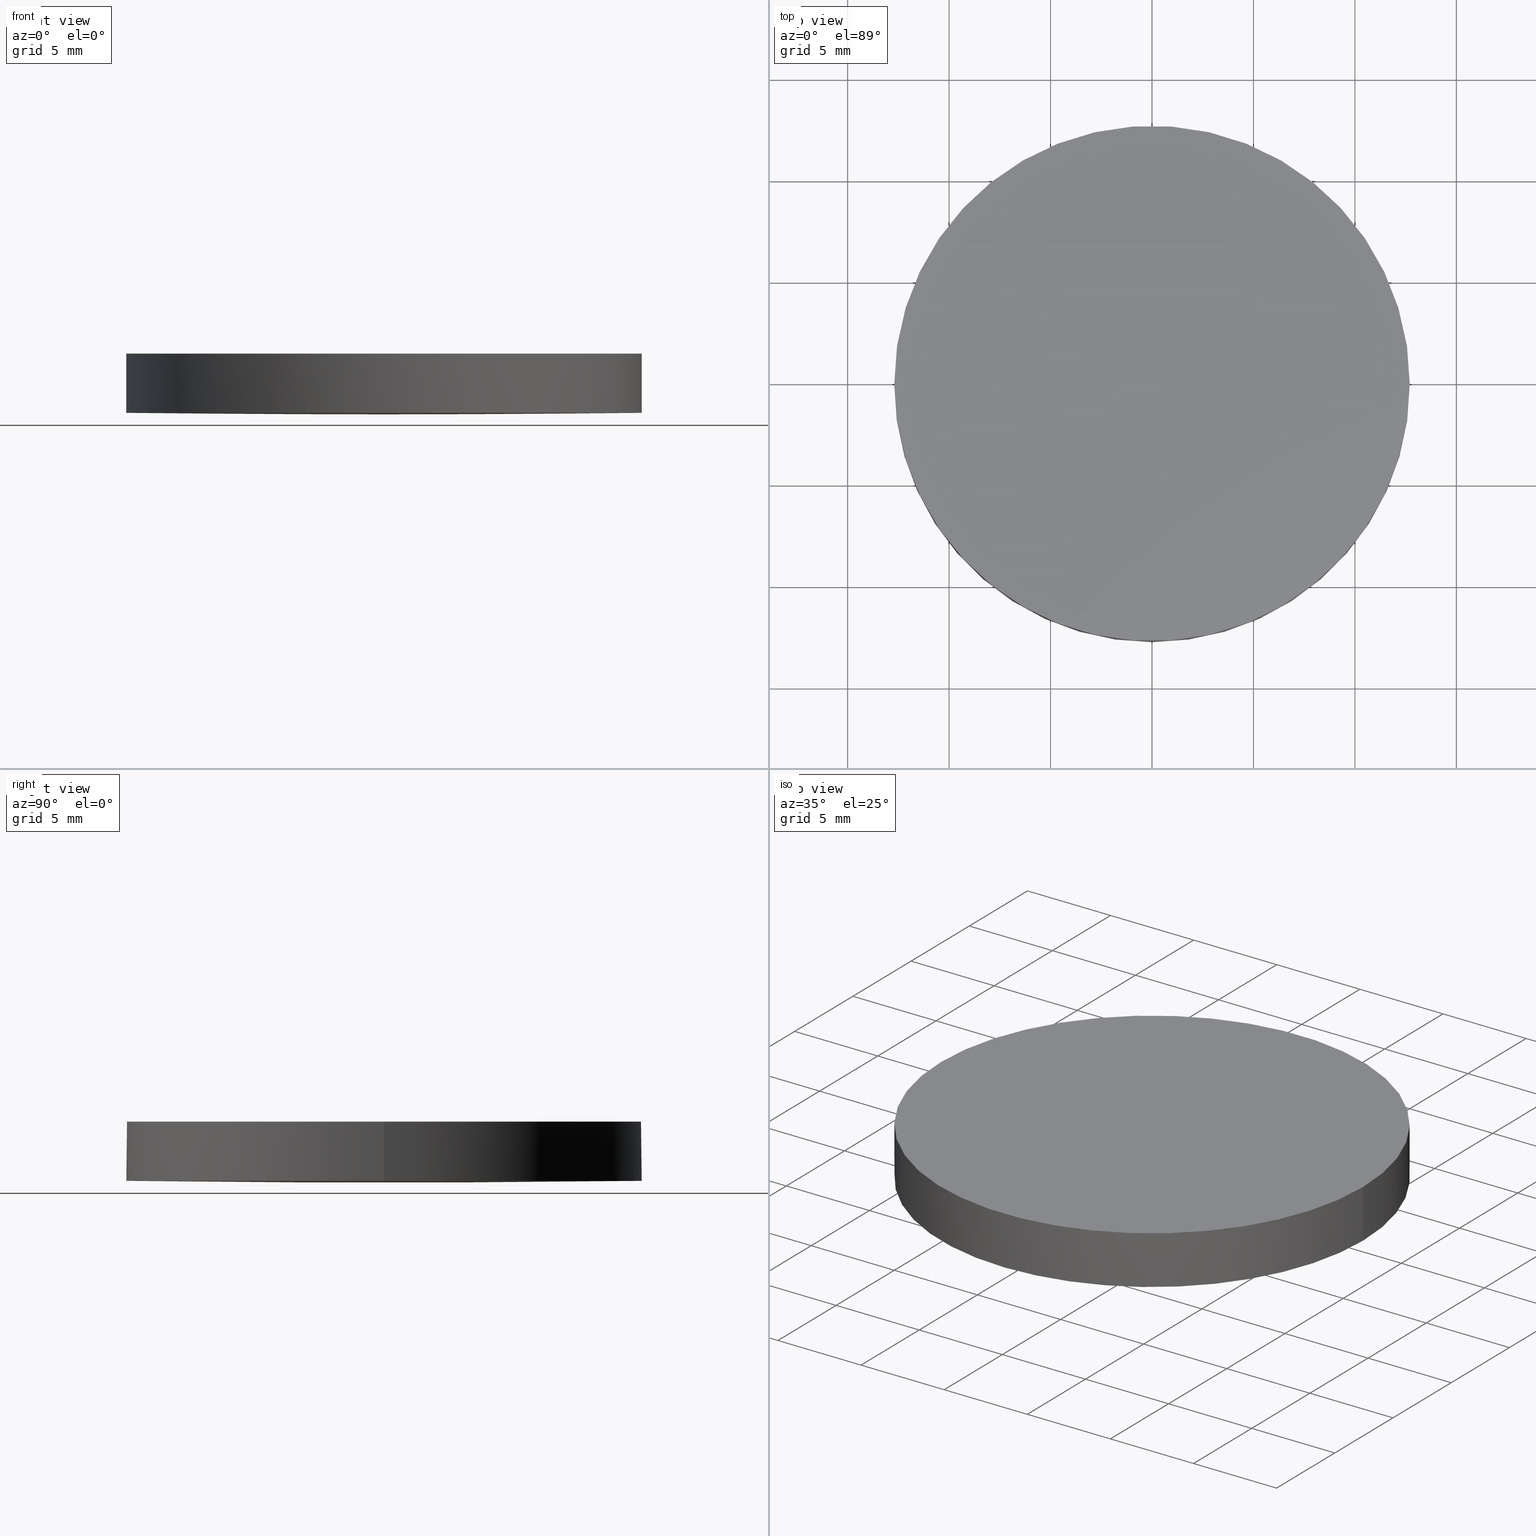
[diagram: canonical four-view strip — front | top / right | iso, engineering-drawing reading convention]
A machine part, canonical four-view strip (front | top / right | iso — engineering-drawing reading convention). The complete STEP part file that produces these views, byte-faithful:
ISO-10303-21;
HEADER;
FILE_DESCRIPTION (( 'STEP AP203' ),
    '1' );
FILE_NAME ('110-0270E BK7 pl-cx 25.4 F1900.STEP',
    '2018-12-21T06:44:55',
    ( '' ),
    ( '' ),
    'SwSTEP 2.0',
    'SolidWorks 2017',
    '' );
FILE_SCHEMA (( 'CONFIG_CONTROL_DESIGN' ));
ENDSEC;

DATA;
#1 = CARTESIAN_POINT ( 'NONE',  ( 4.996003610813200500E-016, 2.442490654175340100E-015, 0.08182665158325720700 ) ) ;
#2 = EDGE_CURVE ( 'NONE', #45, #191, #126, .T. ) ;
#3 = ORIENTED_EDGE ( 'NONE', *, *, #127, .T. ) ;
#4 = PERSON_AND_ORGANIZATION_ROLE ( 'design_supplier' ) ;
#5 = ADVANCED_FACE ( 'NONE', ( #195 ), #73, .T. ) ;
#6 = ORIENTED_EDGE ( 'NONE', *, *, #16, .T. ) ;
#7 = CIRCLE ( 'NONE', #74, 12.69999999999999900 ) ;
#8 = CARTESIAN_POINT ( 'NONE',  ( -12.69999999999999900, 3.997792089092478900E-015, 0.08182665158325720700 ) ) ;
#9 = DIRECTION ( 'NONE',  ( 1.000000000000000000, 0.0000000000000000000, 0.0000000000000000000 ) ) ;
#10 = PERSON_AND_ORGANIZATION ( #152, #44 ) ;
#11 = EDGE_CURVE ( 'NONE', #45, #36, #7, .T. ) ;
#12 = CARTESIAN_POINT ( 'NONE',  ( -8.517913990956008900, -4.284373327980984100, -0.0003306621768354032100 ) ) ;
#13 = APPROVAL ( #162, 'UNSPECIFIED' ) ;
#14 = DIRECTION ( 'NONE',  ( 0.0000000000000000000, 0.0000000000000000000, 1.000000000000000000 ) ) ;
#15 = CALENDAR_DATE ( 2018, 21, 12 ) ;
#16 = EDGE_CURVE ( 'NONE', #129, #36, #202, .T. ) ;
#17 = DIRECTION ( 'NONE',  ( -0.0000000000000000000, -0.0000000000000000000, -1.000000000000000000 ) ) ;
#18 = ADVANCED_BREP_SHAPE_REPRESENTATION ( '110-0270E BK7 pl-cx 25.4 F1900', ( #55, #179 ), #67 ) ;
#19 = CALENDAR_DATE ( 2018, 21, 12 ) ;
#20 = FACE_OUTER_BOUND ( 'NONE', #82, .T. ) ;
#21 = AXIS2_PLACEMENT_3D ( 'NONE', #199, #66, #145 ) ;
#22 = PERSON_AND_ORGANIZATION ( #152, #44 ) ;
#23 = DATE_AND_TIME ( #15, #143 ) ;
#24 = DIRECTION ( 'NONE',  ( 1.000000000000000000, 0.0000000000000000000, 0.0000000000000000000 ) ) ;
#25 = UNCERTAINTY_MEASURE_WITH_UNIT (LENGTH_MEASURE( 1.000000000000000100E-005 ), #217, 'distance_accuracy_value', 'NONE');
#26 = AXIS2_PLACEMENT_3D ( 'NONE', #214, #99, #190 ) ;
#27 = PERSON_AND_ORGANIZATION ( #152, #44 ) ;
#28 = CARTESIAN_POINT ( 'NONE',  ( 12.77655787048304800, 4.284373327981428200, 0.05487818495982228800 ) ) ;
#29 = CARTESIAN_POINT ( 'NONE',  ( -8.516948338615646800, -12.85239141229423900, 0.1114041201863987400 ) ) ;
#30 = CARTESIAN_POINT ( 'NONE',  ( 4.259001726864794600, 4.284373327981430000, -0.02793566560405784000 ) ) ;
#31 = APPROVAL_DATE_TIME ( #125, #169 ) ;
#32 = VECTOR ( 'NONE', #226, 1000.000000000000000 ) ;
#33 = CARTESIAN_POINT ( 'NONE',  ( -4.259001726865159700, 4.284373327981432700, -0.02793566560411626200 ) ) ;
#34 = DIRECTION ( 'NONE',  ( 1.000000000000000000, -1.776356839400250500E-015, 0.0000000000000000000 ) ) ;
#35 = AXIS2_PLACEMENT_3D ( 'NONE', #192, #100, #153 ) ;
#36 = VERTEX_POINT ( 'NONE', #206 ) ;
#37 = APPROVAL_STATUS ( 'not_yet_approved' ) ;
#38 = CARTESIAN_POINT ( 'NONE',  ( -3.209238430557093100E-013, 12.85239141229468500, 0.08380224626197127500 ) ) ;
#39 = DIRECTION ( 'NONE',  ( 1.000000000000000000, 0.0000000000000000000, 0.0000000000000000000 ) ) ;
#40 = CLOSED_SHELL ( 'NONE', ( #93, #223, #96, #5, #165 ) ) ;
#41 = ORIENTED_EDGE ( 'NONE', *, *, #184, .F. ) ;
#42 = CC_DESIGN_PERSON_AND_ORGANIZATION_ASSIGNMENT ( #54, #157, ( #188 ) ) ;
#43 = VERTEX_POINT ( 'NONE', #208 ) ;
#44 = ORGANIZATION ( 'UNSPECIFIED', 'UNSPECIFIED', '' ) ;
#45 = VERTEX_POINT ( 'NONE', #166 ) ;
#46 = CARTESIAN_POINT ( 'NONE',  ( -12.77510942746987000, -12.85239141229423700, 0.1666067084488132000 ) ) ;
#47 = CARTESIAN_POINT ( 'NONE',  ( -12.77510942746986300, 12.85239141229468800, 0.1666067084488132000 ) ) ;
#48 = APPLICATION_PROTOCOL_DEFINITION ( 'international standard', 'config_control_design', 1994, #156 ) ;
#49 = SECURITY_CLASSIFICATION ( '', '', #91 ) ;
#50 =( NAMED_UNIT ( * ) PLANE_ANGLE_UNIT ( ) SI_UNIT ( $, .RADIAN. ) );
#51 = CARTESIAN_POINT ( 'NONE',  ( 12.69999999999999900, 2.442490654175340100E-015, 0.08182665158325720700 ) ) ;
#52 = CARTESIAN_POINT ( 'NONE',  ( -9.019215825501548900E-014, -12.69999999999729000, 0.08182665158327578900 ) ) ;
#53 = ORIENTED_EDGE ( 'NONE', *, *, #174, .T. ) ;
#54 = PERSON_AND_ORGANIZATION ( #152, #44 ) ;
#55 = MANIFOLD_SOLID_BREP ( 'Imported1', #40 ) ;
#56 = ORIENTED_EDGE ( 'NONE', *, *, #167, .T. ) ;
#57 = AXIS2_PLACEMENT_3D ( 'NONE', #1, #17, #34 ) ;
#58 = APPROVAL_PERSON_ORGANIZATION ( #10, #227, #65 ) ;
#59 = FACE_OUTER_BOUND ( 'NONE', #225, .T. ) ;
#60 = PERSON_AND_ORGANIZATION ( #152, #44 ) ;
#61 = EDGE_CURVE ( 'NONE', #191, #89, #148, .T. ) ;
#62 = CARTESIAN_POINT ( 'NONE',  ( 4.258518895623539400, 12.85239141229468300, 0.08380224626203161600 ) ) ;
#63 = EDGE_LOOP ( 'NONE', ( #95, #41, #231, #234, #56 ) ) ;
#64 = CARTESIAN_POINT ( 'NONE',  ( 12.77510942746959300, 12.85239141229468100, 0.1666067084488165300 ) ) ;
#65 = APPROVAL_ROLE ( '' ) ;
#66 = DIRECTION ( 'NONE',  ( 0.0000000000000000000, 0.0000000000000000000, 1.000000000000000000 ) ) ;
#67 =( GEOMETRIC_REPRESENTATION_CONTEXT ( 3 ) GLOBAL_UNCERTAINTY_ASSIGNED_CONTEXT ( ( #25 ) ) GLOBAL_UNIT_ASSIGNED_CONTEXT ( ( #217, #50, #122 ) ) REPRESENTATION_CONTEXT ( 'NONE', 'WORKASPACE' ) );
#68 = CARTESIAN_POINT ( 'NONE',  ( 4.996003610813200500E-016, 2.442490654175340100E-015, 0.08182665158325720700 ) ) ;
#69 = APPLICATION_PROTOCOL_DEFINITION ( 'international standard', 'config_control_design', 1994, #141 ) ;
#70 = DIRECTION ( 'NONE',  ( 0.0000000000000000000, 0.0000000000000000000, 1.000000000000000000 ) ) ;
#71 = DATE_TIME_ROLE ( 'classification_date' ) ;
#72 = DATE_AND_TIME ( #19, #107 ) ;
#73 = CYLINDRICAL_SURFACE ( 'NONE', #197, 12.69999999999999900 ) ;
#74 = AXIS2_PLACEMENT_3D ( 'NONE', #114, #119, #9 ) ;
#75 = LOCAL_TIME ( 8, 44, 55.00000000000000000, #224 ) ;
#76 = DIRECTION ( 'NONE',  ( 0.0000000000000000000, 0.0000000000000000000, 1.000000000000000000 ) ) ;
#77 = ORIENTED_EDGE ( 'NONE', *, *, #184, .T. ) ;
#78 = FACE_OUTER_BOUND ( 'NONE', #149, .T. ) ;
#79 = AXIS2_PLACEMENT_3D ( 'NONE', #68, #124, #180 ) ;
#80 = CARTESIAN_POINT ( 'NONE',  ( -4.259001726865163200, -4.284373327980985000, -0.02793566560411739700 ) ) ;
#81 = CARTESIAN_POINT ( 'NONE',  ( 4.259001726864791900, -4.284373327980987700, -0.02793566560405892300 ) ) ;
#82 = EDGE_LOOP ( 'NONE', ( #3, #6, #53 ) ) ;
#83 = CARTESIAN_POINT ( 'NONE',  ( 8.516948338615323500, 12.85239141229468300, 0.1114041201864036700 ) ) ;
#84 = DESIGN_CONTEXT ( 'detailed design', #141, 'design' ) ;
#85 = APPROVAL_ROLE ( '' ) ;
#86 = DIRECTION ( 'NONE',  ( 1.000000000000000000, 0.0000000000000000000, -0.0000000000000000000 ) ) ;
#87 = CC_DESIGN_APPROVAL ( #13, ( #49 ) ) ;
#88 = CC_DESIGN_APPROVAL ( #227, ( #204 ) ) ;
#89 = VERTEX_POINT ( 'NONE', #229 ) ;
#90 = APPROVAL_ROLE ( '' ) ;
#91 = SECURITY_CLASSIFICATION_LEVEL ( 'unclassified' ) ;
#92 = AXIS2_PLACEMENT_3D ( 'NONE', #219, #109, #39 ) ;
#93 = ADVANCED_FACE ( 'NONE', ( #20 ), #146, .T. ) ;
#94 = PERSON_AND_ORGANIZATION ( #152, #44 ) ;
#95 = ORIENTED_EDGE ( 'NONE', *, *, #2, .F. ) ;
#96 = ADVANCED_FACE ( 'NONE', ( #110 ), #136, .T. ) ;
#97 = CIRCLE ( 'NONE', #57, 12.69999999999999900 ) ;
#98 = CC_DESIGN_PERSON_AND_ORGANIZATION_ASSIGNMENT ( #205, #196, ( #204 ) ) ;
#99 = DIRECTION ( 'NONE',  ( 1.000000000000000000, -2.358650648363000000E-016, -2.038354188545150100E-016 ) ) ;
#100 = DIRECTION ( 'NONE',  ( -0.0000000000000000000, -0.0000000000000000000, -1.000000000000000000 ) ) ;
#101 = CARTESIAN_POINT ( 'NONE',  ( -4.258518895623906200, -12.85239141229423900, 0.08380224626197314800 ) ) ;
#102 = CARTESIAN_POINT ( 'NONE',  ( -8.416483910166389800E-014, 12.85239141229468500, 0.08380224626203247600 ) ) ;
#103 = PERSON_AND_ORGANIZATION ( #152, #44 ) ;
#104 = VECTOR ( 'NONE', #70, 1000.000000000000000 ) ;
#105 = CARTESIAN_POINT ( 'NONE',  ( 0.0000000000000000000, 26.11199999999999800, 3.000000000000000000 ) ) ;
#106 = PERSON_AND_ORGANIZATION_ROLE ( 'design_owner' ) ;
#107 = LOCAL_TIME ( 8, 44, 55.00000000000000000, #218 ) ;
#108 = MECHANICAL_CONTEXT ( 'NONE', #156, 'mechanical' ) ;
#109 = DIRECTION ( 'NONE',  ( -0.0000000000000000000, -0.0000000000000000000, -1.000000000000000000 ) ) ;
#110 = FACE_OUTER_BOUND ( 'NONE', #172, .T. ) ;
#111 = CC_DESIGN_SECURITY_CLASSIFICATION ( #49, ( #188 ) ) ;
#112 = DATE_AND_TIME ( #117, #150 ) ;
#113 = SHAPE_DEFINITION_REPRESENTATION ( #200, #18 ) ;
#114 = CARTESIAN_POINT ( 'NONE',  ( 4.996003610813200500E-016, 2.442490654175340100E-015, 0.08182665158325720700 ) ) ;
#115 = CARTESIAN_POINT ( 'NONE',  ( -8.620851138670619400E-014, 4.284373327981430900, -0.02793566560405697300 ) ) ;
#116 = CARTESIAN_POINT ( 'NONE',  ( 8.516948338615316400, -12.85239141229424200, 0.1114041201864036700 ) ) ;
#117 = CALENDAR_DATE ( 2018, 21, 12 ) ;
#118 = ORIENTED_EDGE ( 'NONE', *, *, #2, .T. ) ;
#119 = DIRECTION ( 'NONE',  ( -0.0000000000000000000, -0.0000000000000000000, -1.000000000000000000 ) ) ;
#120 = PRODUCT ( '110-0270E BK7 pl-cx 25.4 F1900', '110-0270E BK7 pl-cx 25.4 F1900', '', ( #108 ) ) ;
#121 = CARTESIAN_POINT ( 'NONE',  ( -12.69999999999999900, 3.997792089092478900E-015, 3.000000000000000000 ) ) ;
#122 =( NAMED_UNIT ( * ) SI_UNIT ( $, .STERADIAN. ) SOLID_ANGLE_UNIT ( ) );
#123 = EDGE_CURVE ( 'NONE', #43, #89, #161, .T. ) ;
#124 = DIRECTION ( 'NONE',  ( -0.0000000000000000000, -0.0000000000000000000, -1.000000000000000000 ) ) ;
#125 = DATE_AND_TIME ( #171, #75 ) ;
#126 = LINE ( 'NONE', #8, #32 ) ;
#127 = EDGE_CURVE ( 'NONE', #43, #129, #209, .T. ) ;
#128 = APPROVAL_PERSON_ORGANIZATION ( #103, #169, #85 ) ;
#129 = VERTEX_POINT ( 'NONE', #52 ) ;
#130 = ORIENTED_EDGE ( 'NONE', *, *, #167, .F. ) ;
#131 = CARTESIAN_POINT ( 'NONE',  ( 4.996003610813200500E-016, 2.442490654175340100E-015, 0.08182665158325720700 ) ) ;
#132 = CC_DESIGN_PERSON_AND_ORGANIZATION_ASSIGNMENT ( #94, #4, ( #188 ) ) ;
#133 = CARTESIAN_POINT ( 'NONE',  ( 12.77655787048304600, -4.284373327980989500, 0.05487818495982120500 ) ) ;
#134 = CARTESIAN_POINT ( 'NONE',  ( 4.258518895623534000, -12.85239141229424200, 0.08380224626203161600 ) ) ;
#135 = CARTESIAN_POINT ( 'NONE',  ( -3.278627369596165400E-013, -12.85239141229424000, 0.08380224626197124700 ) ) ;
#136 =( BOUNDED_SURFACE ( )  B_SPLINE_SURFACE ( 3, 3, ( 
 ( #46, #29, #101, #135 ),
 ( #173, #12, #80, #170 ),
 ( #193, #211, #33, #154 ),
 ( #47, #175, #220, #38 ) ),
 .UNSPECIFIED., .F., .F., .F. ) 
 B_SPLINE_SURFACE_WITH_KNOTS ( ( 4, 4 ),
 ( 4, 4 ),
 ( 0.0000000000000000000, 1.000000000000000000 ),
 ( 0.0000000000000000000, 1.000000000000000000 ),
 .UNSPECIFIED. ) 
 GEOMETRIC_REPRESENTATION_ITEM ( )  RATIONAL_B_SPLINE_SURFACE ( (
 ( 1.000000000000000000, 0.9999859962843055100, 0.9999859962843055100, 1.000000000000000000),
 ( 0.9999433155801800100, 0.9999293126582780000, 0.9999293126582780000, 0.9999433155801800100),
 ( 0.9999433155801800100, 0.9999293126582780000, 0.9999293126582780000, 0.9999433155801800100),
 ( 1.000000000000000000, 0.9999859962843055100, 0.9999859962843055100, 1.000000000000000000) ) ) 
 REPRESENTATION_ITEM ( '' )  SURFACE ( )  );
#137 = CARTESIAN_POINT ( 'NONE',  ( -8.822957937228058900E-014, -4.284373327980986800, -0.02793566560405805900 ) ) ;
#138 = CIRCLE ( 'NONE', #210, 12.69999999999999900 ) ;
#139 = CC_DESIGN_PERSON_AND_ORGANIZATION_ASSIGNMENT ( #27, #183, ( #49 ) ) ;
#140 = DIRECTION ( 'NONE',  ( 1.000000000000000000, 0.0000000000000000000, 0.0000000000000000000 ) ) ;
#141 = APPLICATION_CONTEXT ( 'configuration controlled 3d designs of mechanical parts and assemblies' ) ;
#142 = DIRECTION ( 'NONE',  ( 0.0000000000000000000, 0.0000000000000000000, 1.000000000000000000 ) ) ;
#143 = LOCAL_TIME ( 8, 44, 55.00000000000000000, #207 ) ;
#144 = ORIENTED_EDGE ( 'NONE', *, *, #123, .F. ) ;
#145 = DIRECTION ( 'NONE',  ( 1.000000000000000000, 0.0000000000000000000, 0.0000000000000000000 ) ) ;
#146 =( BOUNDED_SURFACE ( )  B_SPLINE_SURFACE ( 3, 3, ( 
 ( #228, #134, #116, #232 ),
 ( #137, #81, #151, #133 ),
 ( #115, #30, #168, #28 ),
 ( #102, #62, #83, #64 ) ),
 .UNSPECIFIED., .F., .F., .F. ) 
 B_SPLINE_SURFACE_WITH_KNOTS ( ( 4, 4 ),
 ( 4, 4 ),
 ( 0.0000000000000000000, 1.000000000000000000 ),
 ( 0.0000000000000000000, 1.000000000000000000 ),
 .UNSPECIFIED. ) 
 GEOMETRIC_REPRESENTATION_ITEM ( )  RATIONAL_B_SPLINE_SURFACE ( (
 ( 1.000000000000000000, 0.9999859962843055100, 0.9999859962843055100, 1.000000000000000000),
 ( 0.9999433155801800100, 0.9999293126582780000, 0.9999293126582780000, 0.9999433155801800100),
 ( 0.9999433155801800100, 0.9999293126582780000, 0.9999293126582780000, 0.9999433155801800100),
 ( 1.000000000000000000, 0.9999859962843055100, 0.9999859962843055100, 1.000000000000000000) ) ) 
 REPRESENTATION_ITEM ( '' )  SURFACE ( )  );
#147 = AXIS2_PLACEMENT_3D ( 'NONE', #105, #14, #86 ) ;
#148 = CIRCLE ( 'NONE', #35, 12.69999999999999900 ) ;
#149 = EDGE_LOOP ( 'NONE', ( #222, #118, #213, #144, #186 ) ) ;
#150 = LOCAL_TIME ( 8, 44, 55.00000000000000000, #221 ) ;
#151 = CARTESIAN_POINT ( 'NONE',  ( 8.517913990955680200, -4.284373327980988600, -0.0003306621768304633700 ) ) ;
#152 = PERSON ( 'UNSPECIFIED', 'UNSPECIFIED', 'UNSPECIFIED', ('UNSPECIFIED'), ('UNSPECIFIED'), ('UNSPECIFIED') ) ;
#153 = DIRECTION ( 'NONE',  ( 1.000000000000000000, 0.0000000000000000000, 0.0000000000000000000 ) ) ;
#154 = CARTESIAN_POINT ( 'NONE',  ( -3.243932900076629300E-013, 4.284373327981431800, -0.02793566560411816400 ) ) ;
#155 = APPROVAL_PERSON_ORGANIZATION ( #60, #13, #90 ) ;
#156 = APPLICATION_CONTEXT ( 'configuration controlled 3d designs of mechanical parts and assemblies' ) ;
#157 = PERSON_AND_ORGANIZATION_ROLE ( 'creator' ) ;
#158 = DATE_AND_TIME ( #194, #181 ) ;
#159 = CARTESIAN_POINT ( 'NONE',  ( 4.996003610813200500E-016, 2.442490654175340100E-015, 0.08182665158325720700 ) ) ;
#160 = DIRECTION ( 'NONE',  ( 1.000000000000000000, 0.0000000000000000000, 0.0000000000000000000 ) ) ;
#161 = LINE ( 'NONE', #51, #104 ) ;
#162 = APPROVAL_STATUS ( 'not_yet_approved' ) ;
#163 = CC_DESIGN_DATE_AND_TIME_ASSIGNMENT ( #158, #235, ( #204 ) ) ;
#164 = ORIENTED_EDGE ( 'NONE', *, *, #61, .F. ) ;
#165 = ADVANCED_FACE ( 'NONE', ( #59 ), #198, .T. ) ;
#166 = CARTESIAN_POINT ( 'NONE',  ( -12.69999999999999900, 3.997792089092478900E-015, 0.08182665158325720700 ) ) ;
#167 = EDGE_CURVE ( 'NONE', #89, #191, #187, .T. ) ;
#168 = CARTESIAN_POINT ( 'NONE',  ( 8.517913990955682000, 4.284373327981429100, -0.0003306621768293791100 ) ) ;
#169 = APPROVAL ( #37, 'UNSPECIFIED' ) ;
#170 = CARTESIAN_POINT ( 'NONE',  ( -3.278627369596165400E-013, -4.284373327980985900, -0.02793566560411930200 ) ) ;
#171 = CALENDAR_DATE ( 2018, 21, 12 ) ;
#172 = EDGE_LOOP ( 'NONE', ( #185, #77, #182 ) ) ;
#173 = CARTESIAN_POINT ( 'NONE',  ( -12.77655787048332700, -4.284373327980983200, 0.05487818495981786800 ) ) ;
#174 = EDGE_CURVE ( 'NONE', #36, #43, #97, .T. ) ;
#175 = CARTESIAN_POINT ( 'NONE',  ( -8.516948338615639700, 12.85239141229468600, 0.1114041201863987400 ) ) ;
#176 = APPROVAL_STATUS ( 'not_yet_approved' ) ;
#177 = CC_DESIGN_APPROVAL ( #169, ( #188 ) ) ;
#178 = CYLINDRICAL_SURFACE ( 'NONE', #21, 12.69999999999999900 ) ;
#179 = AXIS2_PLACEMENT_3D ( 'NONE', #233, #142, #160 ) ;
#180 = DIRECTION ( 'NONE',  ( 1.000000000000000000, 0.0000000000000000000, 0.0000000000000000000 ) ) ;
#181 = LOCAL_TIME ( 8, 44, 55.00000000000000000, #201 ) ;
#182 = ORIENTED_EDGE ( 'NONE', *, *, #11, .T. ) ;
#183 = PERSON_AND_ORGANIZATION_ROLE ( 'classification_officer' ) ;
#184 = EDGE_CURVE ( 'NONE', #129, #45, #138, .T. ) ;
#185 = ORIENTED_EDGE ( 'NONE', *, *, #16, .F. ) ;
#186 = ORIENTED_EDGE ( 'NONE', *, *, #174, .F. ) ;
#187 = CIRCLE ( 'NONE', #92, 12.69999999999999900 ) ;
#188 = PRODUCT_DEFINITION_FORMATION_WITH_SPECIFIED_SOURCE ( 'ANY', '', #120, .NOT_KNOWN. ) ;
#189 = CC_DESIGN_PERSON_AND_ORGANIZATION_ASSIGNMENT ( #22, #106, ( #120 ) ) ;
#190 = DIRECTION ( 'NONE',  ( -2.358650648363000000E-016, -1.000000000000000000, 2.252887631138710800E-016 ) ) ;
#191 = VERTEX_POINT ( 'NONE', #121 ) ;
#192 = CARTESIAN_POINT ( 'NONE',  ( 4.996003610813200500E-016, 2.442490654175340100E-015, 3.000000000000000000 ) ) ;
#193 = CARTESIAN_POINT ( 'NONE',  ( -12.77655787048332300, 4.284373327981434400, 0.05487818495981895000 ) ) ;
#194 = CALENDAR_DATE ( 2018, 21, 12 ) ;
#195 = FACE_OUTER_BOUND ( 'NONE', #63, .T. ) ;
#196 = PERSON_AND_ORGANIZATION_ROLE ( 'creator' ) ;
#197 = AXIS2_PLACEMENT_3D ( 'NONE', #131, #76, #24 ) ;
#198 = PLANE ( 'NONE',  #147 ) ;
#199 = CARTESIAN_POINT ( 'NONE',  ( 4.996003610813200500E-016, 2.442490654175340100E-015, 0.08182665158325720700 ) ) ;
#200 = PRODUCT_DEFINITION_SHAPE ( 'NONE', 'NONE',  #204 ) ;
#201 = COORDINATED_UNIVERSAL_TIME_OFFSET ( 2, 0, .AHEAD. ) ;
#202 = CIRCLE ( 'NONE', #26, 985.5999999999999100 ) ;
#203 = CC_DESIGN_DATE_AND_TIME_ASSIGNMENT ( #112, #71, ( #49 ) ) ;
#204 = PRODUCT_DEFINITION ( 'UNKNOWN', '', #188, #84 ) ;
#205 = PERSON_AND_ORGANIZATION ( #152, #44 ) ;
#206 = CARTESIAN_POINT ( 'NONE',  ( -8.420118560817468000E-014, 12.69999999999757600, 0.08182665158327578900 ) ) ;
#207 = COORDINATED_UNIVERSAL_TIME_OFFSET ( 2, 0, .AHEAD. ) ;
#208 = CARTESIAN_POINT ( 'NONE',  ( 12.69999999999999900, 2.442490654175340100E-015, 0.08182665158325720700 ) ) ;
#209 = CIRCLE ( 'NONE', #79, 12.69999999999999900 ) ;
#210 = AXIS2_PLACEMENT_3D ( 'NONE', #159, #215, #140 ) ;
#211 = CARTESIAN_POINT ( 'NONE',  ( -8.517913990956005300, 4.284373327981433600, -0.0003306621768343122900 ) ) ;
#212 = APPROVAL_DATE_TIME ( #72, #13 ) ;
#213 = ORIENTED_EDGE ( 'NONE', *, *, #61, .T. ) ;
#214 = CARTESIAN_POINT ( 'NONE',  ( 1.136868377216160000E-013, 2.842170943040400200E-013, 985.6000000000000200 ) ) ;
#215 = DIRECTION ( 'NONE',  ( -0.0000000000000000000, -0.0000000000000000000, -1.000000000000000000 ) ) ;
#216 = PRODUCT_RELATED_PRODUCT_CATEGORY ( 'detail', '', ( #120 ) ) ;
#217 =( LENGTH_UNIT ( ) NAMED_UNIT ( * ) SI_UNIT ( .MILLI., .METRE. ) );
#218 = COORDINATED_UNIVERSAL_TIME_OFFSET ( 2, 0, .AHEAD. ) ;
#219 = CARTESIAN_POINT ( 'NONE',  ( 4.996003610813200500E-016, 2.442490654175340100E-015, 3.000000000000000000 ) ) ;
#220 = CARTESIAN_POINT ( 'NONE',  ( -4.258518895623900000, 12.85239141229468600, 0.08380224626197317600 ) ) ;
#221 = COORDINATED_UNIVERSAL_TIME_OFFSET ( 2, 0, .AHEAD. ) ;
#222 = ORIENTED_EDGE ( 'NONE', *, *, #11, .F. ) ;
#223 = ADVANCED_FACE ( 'NONE', ( #78 ), #178, .T. ) ;
#224 = COORDINATED_UNIVERSAL_TIME_OFFSET ( 2, 0, .AHEAD. ) ;
#225 = EDGE_LOOP ( 'NONE', ( #130, #164 ) ) ;
#226 = DIRECTION ( 'NONE',  ( 0.0000000000000000000, 0.0000000000000000000, 1.000000000000000000 ) ) ;
#227 = APPROVAL ( #176, 'UNSPECIFIED' ) ;
#228 = CARTESIAN_POINT ( 'NONE',  ( -9.022769936918857100E-014, -12.85239141229424000, 0.08380224626203247600 ) ) ;
#229 = CARTESIAN_POINT ( 'NONE',  ( 12.69999999999999900, 2.442490654175340100E-015, 3.000000000000000000 ) ) ;
#230 = APPROVAL_DATE_TIME ( #23, #227 ) ;
#231 = ORIENTED_EDGE ( 'NONE', *, *, #127, .F. ) ;
#232 = CARTESIAN_POINT ( 'NONE',  ( 12.77510942746958600, -12.85239141229424400, 0.1666067084488165300 ) ) ;
#233 = CARTESIAN_POINT ( 'NONE',  ( 0.0000000000000000000, 0.0000000000000000000, 0.0000000000000000000 ) ) ;
#234 = ORIENTED_EDGE ( 'NONE', *, *, #123, .T. ) ;
#235 = DATE_TIME_ROLE ( 'creation_date' ) ;
ENDSEC;
END-ISO-10303-21;
